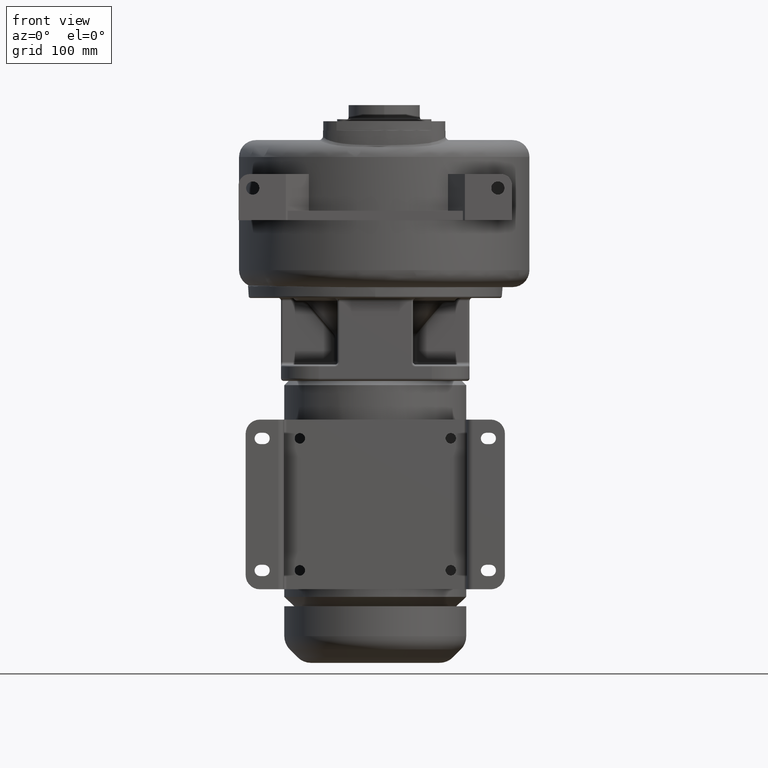
[diagram: clean part render]
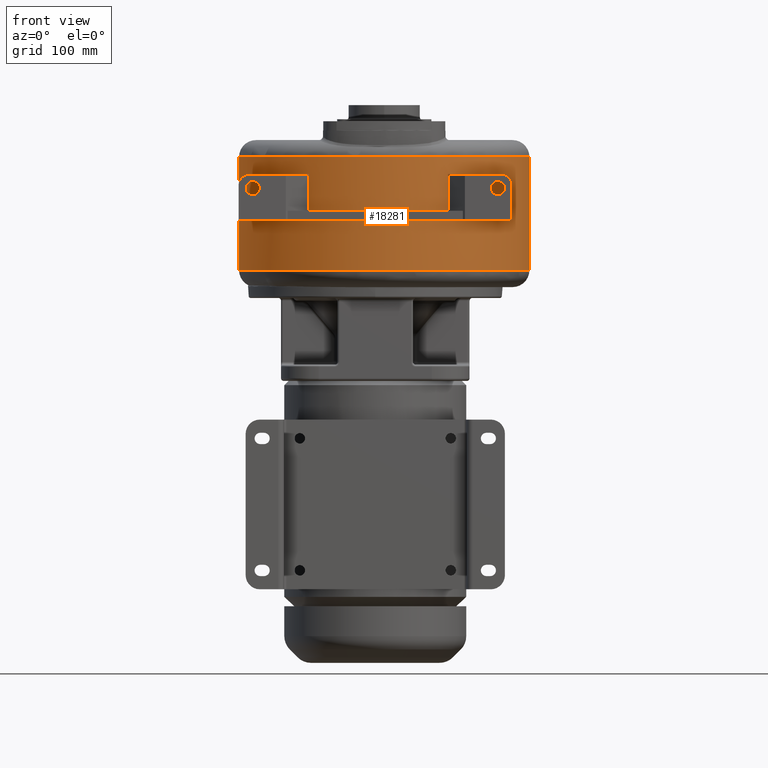
[diagram: same view with one face highlighted and labeled with its STEP entity id]
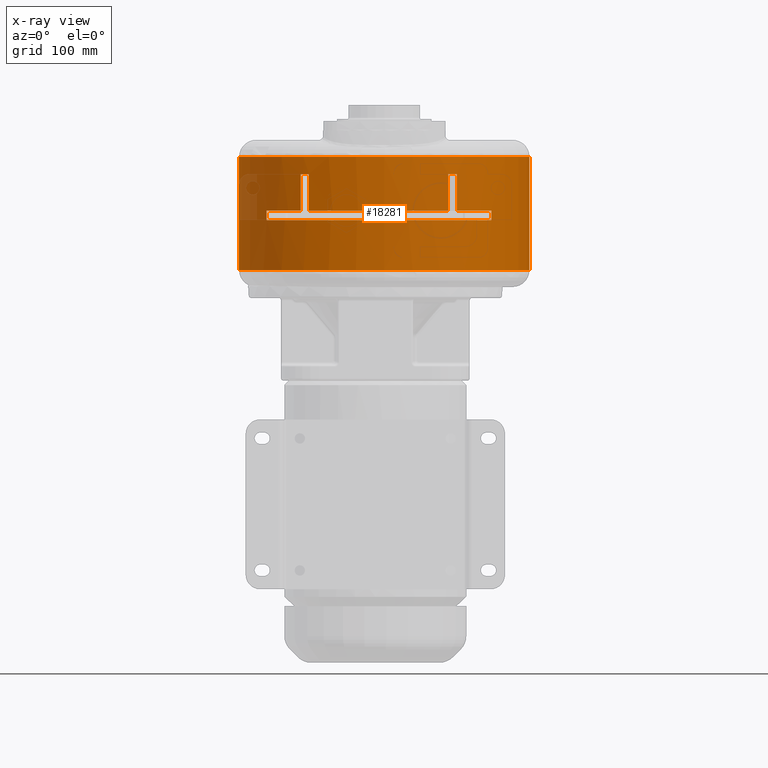
[diagram: x-ray of the same camera — body ghosted, the highlighted face saturated]
A machine part, front view. The second image highlights one B-rep face of the part: STEP entity #18281.
The next image is the same camera in x-ray: the body ghosted, the highlighted face saturated — about 2% of this face is hidden behind the body in this view.
In plain terms, the highlighted cylindrical surface (partial cylindrical patch) has radius 154 mm, axis along (0, 0, -1).
Its self-contained STEP definition (entity closure, byte-faithful):
#4238=CARTESIAN_POINT('',(9.5E0,0.E0,1.155E2));
#4239=DIRECTION('',(0.E0,0.E0,-1.E0));
#4240=DIRECTION('',(1.E0,0.E0,0.E0));
#4241=AXIS2_PLACEMENT_3D('',#4238,#4239,#4240);
#4243=CARTESIAN_POINT('',(9.5E0,0.E0,2.355E2));
#4244=DIRECTION('',(0.E0,0.E0,1.E0));
#4245=DIRECTION('',(-1.E0,0.E0,0.E0));
#4246=AXIS2_PLACEMENT_3D('',#4243,#4244,#4245);
#4248=DIRECTION('',(0.E0,-7.877448693350E-14,1.E0));
#4249=VECTOR('',#4248,1.2E2);
#4250=CARTESIAN_POINT('',(1.635E2,1.822019956635E-11,1.155E2));
#4251=LINE('',#4250,#4249);
#4252=DIRECTION('',(0.E0,0.E0,-1.E0));
#4253=VECTOR('',#4252,1.E1);
#4254=CARTESIAN_POINT('',(1.230674477510E2,-1.040117051650E2,1.785E2));
#4255=LINE('',#4254,#4253);
#4256=CARTESIAN_POINT('',(9.5E0,0.E0,1.785E2));
#4257=DIRECTION('',(0.E0,0.E0,-1.E0));
#4258=DIRECTION('',(7.374509594218E-1,-6.754006828897E-1,0.E0));
#4259=AXIS2_PLACEMENT_3D('',#4256,#4257,#4258);
#4261=DIRECTION('',(0.E0,0.E0,-1.E0));
#4262=VECTOR('',#4261,3.9E1);
#4263=CARTESIAN_POINT('',(8.641623745290E1,-1.334162374529E2,2.175E2));
#4264=LINE('',#4263,#4262);
#4265=CARTESIAN_POINT('',(9.5E0,0.E0,2.175E2));
#4266=DIRECTION('',(0.E0,0.E0,-1.E0));
#4267=DIRECTION('',(4.994560873565E-1,-8.663392042396E-1,0.E0));
#4268=AXIS2_PLACEMENT_3D('',#4265,#4266,#4267);
#4270=DIRECTION('',(0.E0,0.E0,-1.E0));
#4271=VECTOR('',#4270,3.9E1);
#4272=CARTESIAN_POINT('',(7.718583568800E1,-1.383279713117E2,2.175E2));
#4273=LINE('',#4272,#4271);
#4274=CARTESIAN_POINT('',(9.5E0,0.E0,1.785E2));
#4275=DIRECTION('',(0.E0,0.E0,-1.E0));
#4276=DIRECTION('',(4.395184135584E-1,-8.982335799463E-1,0.E0));
#4277=AXIS2_PLACEMENT_3D('',#4274,#4275,#4276);
#4279=CARTESIAN_POINT('',(9.5E0,0.E0,1.785E2));
#4280=DIRECTION('',(0.E0,0.E0,-1.E0));
#4281=DIRECTION('',(0.E0,-1.E0,0.E0));
#4282=AXIS2_PLACEMENT_3D('',#4279,#4280,#4281);
#4284=DIRECTION('',(0.E0,0.E0,-1.E0));
#4285=VECTOR('',#4284,3.9E1);
#4286=CARTESIAN_POINT('',(-7.046774283016E1,-1.316098784539E2,2.175E2));
#4287=LINE('',#4286,#4285);
#4288=CARTESIAN_POINT('',(9.5E0,0.E0,2.175E2));
#4289=DIRECTION('',(0.E0,0.E0,-1.E0));
#4290=DIRECTION('',(-5.192710573387E-1,-8.546096003500E-1,0.E0));
#4291=AXIS2_PLACEMENT_3D('',#4288,#4289,#4290);
#4293=DIRECTION('',(0.E0,0.E0,-1.E0));
#4294=VECTOR('',#4293,3.9E1);
#4295=CARTESIAN_POINT('',(-7.901806374686E1,-1.260180637469E2,2.175E2));
#4296=LINE('',#4295,#4294);
#4297=CARTESIAN_POINT('',(9.5E0,0.E0,1.785E2));
#4298=DIRECTION('',(0.E0,0.E0,-1.E0));
#4299=DIRECTION('',(-5.747926217328E-1,-8.182991152393E-1,0.E0));
#4300=AXIS2_PLACEMENT_3D('',#4297,#4298,#4299);
#4302=DIRECTION('',(0.E0,0.E0,-1.E0));
#4303=VECTOR('',#4302,1.E1);
#4304=CARTESIAN_POINT('',(-1.151937462282E2,-9.037405408398E1,1.785E2));
#4305=LINE('',#4304,#4303);
#4314=DIRECTION('',(0.E0,1.469611469555E-13,1.E0));
#4315=VECTOR('',#4314,1.2E2);
#4316=CARTESIAN_POINT('',(-1.445E2,1.659534688937E-11,1.155E2));
#4317=LINE('',#4316,#4315);
#4335=CARTESIAN_POINT('',(9.5E0,0.E0,1.685E2));
#4336=DIRECTION('',(0.E0,0.E0,-1.E0));
#4337=DIRECTION('',(7.374509594218E-1,-6.754006828897E-1,0.E0));
#4338=AXIS2_PLACEMENT_3D('',#4335,#4336,#4337);
#4364=CARTESIAN_POINT('',(9.5E0,0.E0,1.685E2));
#4365=DIRECTION('',(0.E0,0.E0,-1.E0));
#4366=DIRECTION('',(0.E0,-1.E0,0.E0));
#4367=AXIS2_PLACEMENT_3D('',#4364,#4365,#4366);
#13584=CARTESIAN_POINT('',(1.635E2,8.767261134333E-12,2.355E2));
#13585=VERTEX_POINT('',#13584);
#13586=CARTESIAN_POINT('',(-1.445E2,-3.771912141374E-14,2.355E2));
#13587=VERTEX_POINT('',#13586);
#13618=CARTESIAN_POINT('',(1.635E2,1.821831574489E-11,1.155E2));
#13619=VERTEX_POINT('',#13618);
#13620=CARTESIAN_POINT('',(-1.445E2,-3.771912141374E-14,1.155E2));
#13621=VERTEX_POINT('',#13620);
#13634=CARTESIAN_POINT('',(8.641623745290E1,-1.334162374529E2,2.175E2));
#13635=CARTESIAN_POINT('',(7.718583568800E1,-1.383279713117E2,2.175E2));
#13636=VERTEX_POINT('',#13634);
#13637=VERTEX_POINT('',#13635);
#13638=CARTESIAN_POINT('',(-7.046774283016E1,-1.316098784539E2,2.175E2));
#13639=CARTESIAN_POINT('',(-7.901806374686E1,-1.260180637469E2,2.175E2));
#13640=VERTEX_POINT('',#13638);
#13641=VERTEX_POINT('',#13639);
#13650=CARTESIAN_POINT('',(1.230674477510E2,-1.040117051650E2,1.785E2));
#13651=CARTESIAN_POINT('',(8.641623745290E1,-1.334162374529E2,1.785E2));
#13652=VERTEX_POINT('',#13650);
#13653=VERTEX_POINT('',#13651);
#13654=CARTESIAN_POINT('',(7.718583568800E1,-1.383279713117E2,1.785E2));
#13655=CARTESIAN_POINT('',(9.5E0,-1.54E2,1.785E2));
#13656=VERTEX_POINT('',#13654);
#13657=VERTEX_POINT('',#13655);
#13658=CARTESIAN_POINT('',(-7.046774283016E1,-1.316098784539E2,1.785E2));
#13659=VERTEX_POINT('',#13658);
#13660=CARTESIAN_POINT('',(-7.901806374686E1,-1.260180637469E2,1.785E2));
#13661=CARTESIAN_POINT('',(-1.151937462282E2,-9.037405408398E1,1.785E2));
#13662=VERTEX_POINT('',#13660);
#13663=VERTEX_POINT('',#13661);
#13664=CARTESIAN_POINT('',(1.230674477510E2,-1.040117051650E2,1.685E2));
#13665=VERTEX_POINT('',#13664);
#13666=CARTESIAN_POINT('',(-1.151937462282E2,-9.037405408398E1,1.685E2));
#13667=VERTEX_POINT('',#13666);
#13681=CARTESIAN_POINT('',(9.5E0,-1.54E2,1.685E2));
#13683=VERTEX_POINT('',#13681);
#18238=CARTESIAN_POINT('',(9.5E0,0.E0,9.75E1));
#18239=DIRECTION('',(0.E0,0.E0,-1.E0));
#18240=DIRECTION('',(-1.E0,0.E0,0.E0));
#18241=AXIS2_PLACEMENT_3D('',#18238,#18239,#18240);
#18242=CYLINDRICAL_SURFACE('',#18241,1.54E2);
#18243=ORIENTED_EDGE('',*,*,#18220,.T.);
#18245=ORIENTED_EDGE('',*,*,#18244,.T.);
#18246=ORIENTED_EDGE('',*,*,#16450,.T.);
#18248=ORIENTED_EDGE('',*,*,#18247,.F.);
#18249=EDGE_LOOP('',(#18243,#18245,#18246,#18248));
#18250=FACE_OUTER_BOUND('',#18249,.F.);
#18252=ORIENTED_EDGE('',*,*,#18251,.F.);
#18254=ORIENTED_EDGE('',*,*,#18253,.F.);
#18256=ORIENTED_EDGE('',*,*,#18255,.T.);
#18258=ORIENTED_EDGE('',*,*,#18257,.F.);
#18260=ORIENTED_EDGE('',*,*,#18259,.T.);
#18262=ORIENTED_EDGE('',*,*,#18261,.T.);
#18264=ORIENTED_EDGE('',*,*,#18263,.T.);
#18266=ORIENTED_EDGE('',*,*,#18265,.T.);
#18268=ORIENTED_EDGE('',*,*,#18267,.F.);
#18270=ORIENTED_EDGE('',*,*,#18269,.T.);
#18272=ORIENTED_EDGE('',*,*,#18271,.T.);
#18274=ORIENTED_EDGE('',*,*,#18273,.T.);
#18276=ORIENTED_EDGE('',*,*,#18275,.T.);
#18278=ORIENTED_EDGE('',*,*,#18277,.F.);
#18279=EDGE_LOOP('',(#18252,#18254,#18256,#18258,#18260,#18262,#18264,#18266,
#18268,#18270,#18272,#18274,#18276,#18278));
#18280=FACE_BOUND('',#18279,.F.);
#18281=ADVANCED_FACE('',(#18250,#18280),#18242,.T.);
#4242=CIRCLE('',#4241,1.54E2);
#4247=CIRCLE('',#4246,1.54E2);
#4260=CIRCLE('',#4259,1.54E2);
#4269=CIRCLE('',#4268,1.54E2);
#4278=CIRCLE('',#4277,1.54E2);
#4283=CIRCLE('',#4282,1.54E2);
#4292=CIRCLE('',#4291,1.54E2);
#4301=CIRCLE('',#4300,1.54E2);
#4339=CIRCLE('',#4338,1.54E2);
#4368=CIRCLE('',#4367,1.54E2);
#16450=EDGE_CURVE('',#13587,#13585,#4247,.T.);
#18220=EDGE_CURVE('',#13619,#13621,#4242,.T.);
#18244=EDGE_CURVE('',#13621,#13587,#4317,.T.);
#18247=EDGE_CURVE('',#13619,#13585,#4251,.T.);
#18251=EDGE_CURVE('',#13665,#13683,#4339,.T.);
#18253=EDGE_CURVE('',#13652,#13665,#4255,.T.);
#18255=EDGE_CURVE('',#13652,#13653,#4260,.T.);
#18257=EDGE_CURVE('',#13636,#13653,#4264,.T.);
#18259=EDGE_CURVE('',#13636,#13637,#4269,.T.);
#18261=EDGE_CURVE('',#13637,#13656,#4273,.T.);
#18263=EDGE_CURVE('',#13656,#13657,#4278,.T.);
#18265=EDGE_CURVE('',#13657,#13659,#4283,.T.);
#18267=EDGE_CURVE('',#13640,#13659,#4287,.T.);
#18269=EDGE_CURVE('',#13640,#13641,#4292,.T.);
#18271=EDGE_CURVE('',#13641,#13662,#4296,.T.);
#18273=EDGE_CURVE('',#13662,#13663,#4301,.T.);
#18275=EDGE_CURVE('',#13663,#13667,#4305,.T.);
#18277=EDGE_CURVE('',#13683,#13667,#4368,.T.);